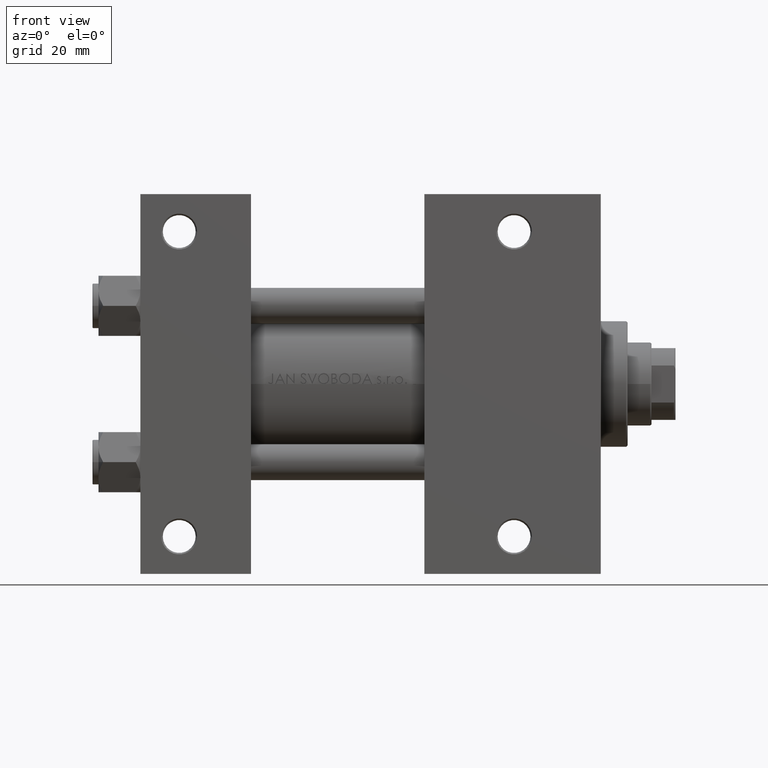
[diagram: clean part render]
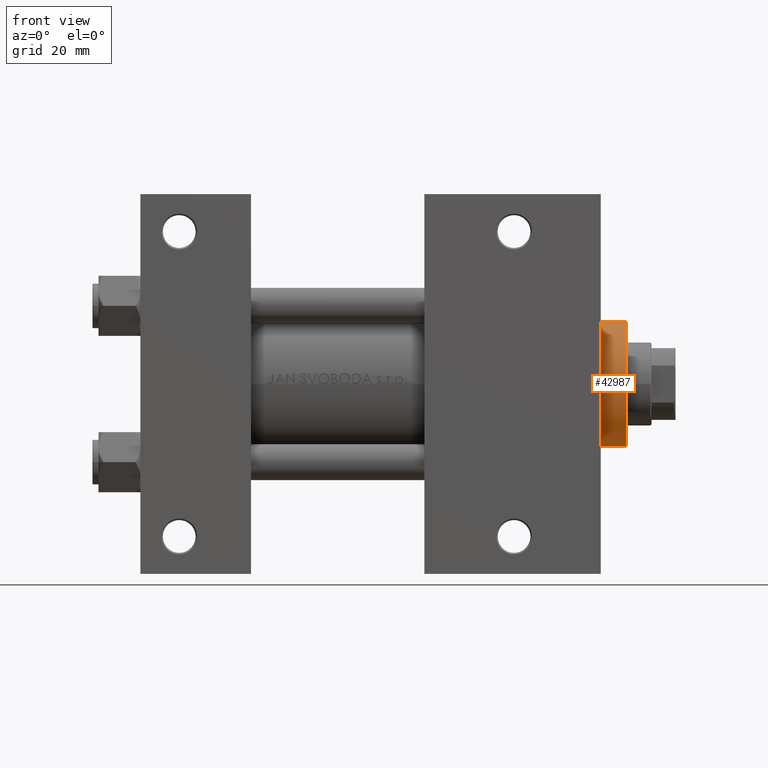
[diagram: same view with one face highlighted and labeled with its STEP entity id]
A machine part, front view. The second image highlights one B-rep face of the part: STEP entity #42987.
In plain terms, the highlighted cylindrical surface (partial cylindrical patch) has radius 21 mm, axis along (-1, -0, 0).
Its self-contained STEP definition (entity closure, byte-faithful):
#1955 = VERTEX_POINT ( 'NONE', #33888 ) ;
#3863 = AXIS2_PLACEMENT_3D ( 'NONE', #15472, #38537, #35274 ) ;
#5939 = DIRECTION ( 'NONE',  ( -0.000000000000000000, -0.000000000000000000, -1.000000000000000000 ) ) ;
#8565 = AXIS2_PLACEMENT_3D ( 'NONE', #39561, #20499, #27085 ) ;
#10385 = CARTESIAN_POINT ( 'NONE',  ( 21.00000000000000000, 2.571758278209441661E-15, 37.19999999999999574 ) ) ;
#11177 = EDGE_CURVE ( 'NONE', #41322, #1955, #32272, .T. ) ;
#11628 = CARTESIAN_POINT ( 'NONE',  ( 0.000000000000000000, 0.000000000000000000, 37.69999999999999574 ) ) ;
#11784 = CIRCLE ( 'NONE', #8565, 21.00000000000000000 ) ;
#12882 = DIRECTION ( 'NONE',  ( -1.000000000000000000, 0.000000000000000000, 0.000000000000000000 ) ) ;
#13460 = EDGE_CURVE ( 'NONE', #22213, #1955, #11784, .T. ) ;
#14158 = VECTOR ( 'NONE', #36876, 1000.000000000000000 ) ;
#15472 = CARTESIAN_POINT ( 'NONE',  ( 0.000000000000000000, 0.000000000000000000, 37.19999999999999574 ) ) ;
#16910 = CARTESIAN_POINT ( 'NONE',  ( -21.00000000000000000, 0.000000000000000000, 37.19999999999999574 ) ) ;
#17828 = CARTESIAN_POINT ( 'NONE',  ( -21.00000000000000000, 0.000000000000000000, 37.69999999999999574 ) ) ;
#17967 = AXIS2_PLACEMENT_3D ( 'NONE', #11628, #26921, #12882 ) ;
#19216 = EDGE_LOOP ( 'NONE', ( #24046, #46088, #19725, #31636 ) ) ;
#19725 = ORIENTED_EDGE ( 'NONE', *, *, #24672, .T. ) ;
#19874 = CIRCLE ( 'NONE', #3863, 21.00000000000000000 ) ;
#20499 = DIRECTION ( 'NONE',  ( 0.000000000000000000, 0.000000000000000000, 1.000000000000000000 ) ) ;
#21897 = VERTEX_POINT ( 'NONE', #16910 ) ;
#22213 = VERTEX_POINT ( 'NONE', #33190 ) ;
#24046 = ORIENTED_EDGE ( 'NONE', *, *, #11177, .F. ) ;
#24672 = EDGE_CURVE ( 'NONE', #21897, #22213, #26320, .T. ) ;
#26320 = LINE ( 'NONE', #17828, #14158 ) ;
#26921 = DIRECTION ( 'NONE',  ( -0.000000000000000000, -0.000000000000000000, -1.000000000000000000 ) ) ;
#27085 = DIRECTION ( 'NONE',  ( 1.000000000000000000, 0.000000000000000000, 0.000000000000000000 ) ) ;
#27651 = EDGE_CURVE ( 'NONE', #41322, #21897, #19874, .T. ) ;
#28535 = VECTOR ( 'NONE', #5939, 1000.000000000000000 ) ;
#31636 = ORIENTED_EDGE ( 'NONE', *, *, #13460, .T. ) ;
#32272 = LINE ( 'NONE', #43554, #28535 ) ;
#33190 = CARTESIAN_POINT ( 'NONE',  ( -21.00000000000000000, 0.000000000000000000, 28.69999999999999929 ) ) ;
#33888 = CARTESIAN_POINT ( 'NONE',  ( 21.00000000000000000, 2.571758278209441661E-15, 28.69999999999999929 ) ) ;
#35274 = DIRECTION ( 'NONE',  ( 1.000000000000000000, 0.000000000000000000, 0.000000000000000000 ) ) ;
#36876 = DIRECTION ( 'NONE',  ( -0.000000000000000000, -0.000000000000000000, -1.000000000000000000 ) ) ;
#38537 = DIRECTION ( 'NONE',  ( 0.000000000000000000, 0.000000000000000000, -1.000000000000000000 ) ) ;
#39561 = CARTESIAN_POINT ( 'NONE',  ( 0.000000000000000000, 0.000000000000000000, 28.69999999999999929 ) ) ;
#41322 = VERTEX_POINT ( 'NONE', #10385 ) ;
#42987 = ADVANCED_FACE ( 'NONE', ( #45963 ), #45722, .T. ) ;
#43554 = CARTESIAN_POINT ( 'NONE',  ( 21.00000000000000000, 2.571758278209441661E-15, 37.69999999999999574 ) ) ;
#45722 = CYLINDRICAL_SURFACE ( 'NONE', #17967, 21.00000000000000000 ) ;
#45963 = FACE_OUTER_BOUND ( 'NONE', #19216, .T. ) ;
#46088 = ORIENTED_EDGE ( 'NONE', *, *, #27651, .T. ) ;